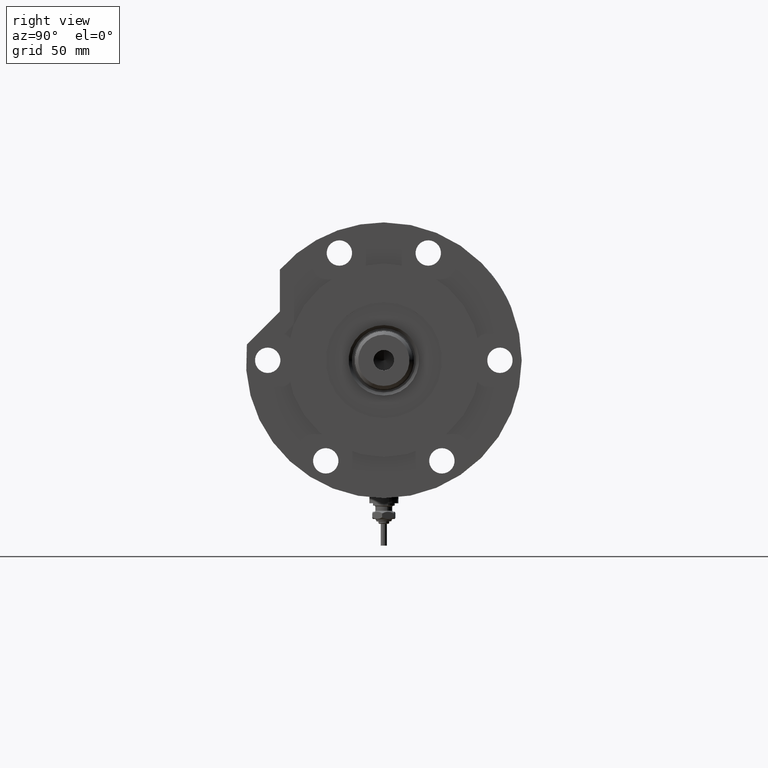
[diagram: clean part render]
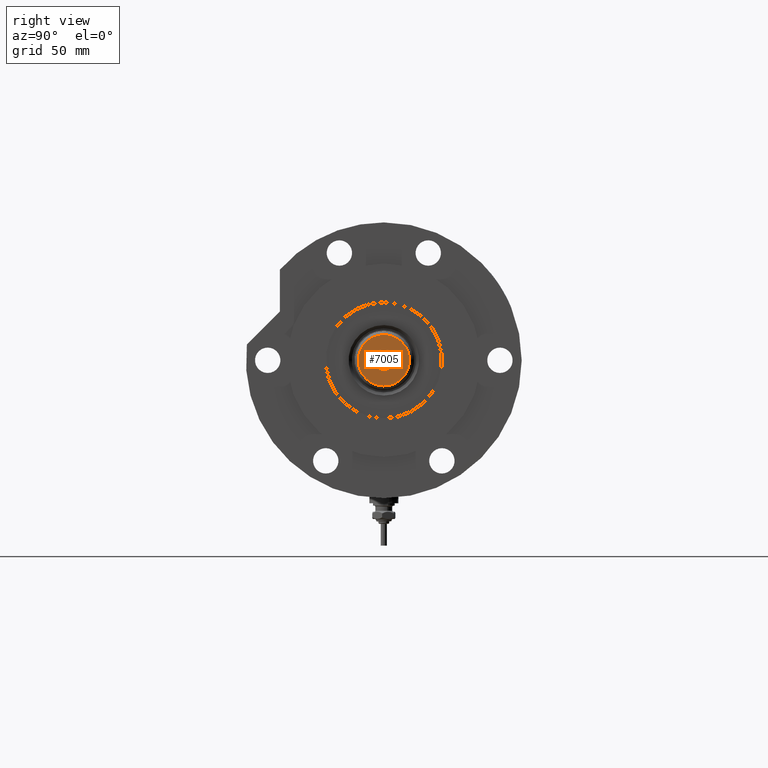
[diagram: same view with one face highlighted and labeled with its STEP entity id]
A machine part, right view. The second image highlights one B-rep face of the part: STEP entity #7005.
In plain terms, the highlighted planar face has unit normal (1, 0, -0).
Its self-contained STEP definition (entity closure, byte-faithful):
#939 = FACE_BOUND ( 'NONE', #3194, .T. ) ;
#1013 = VERTEX_POINT ( 'NONE', #3837 ) ;
#1039 = DIRECTION ( 'NONE',  ( 1.000000000000000000, 0.000000000000000000, 0.000000000000000000 ) ) ;
#1274 = CARTESIAN_POINT ( 'NONE',  ( 0.000000000000000000, 0.000000000000000000, 207.6999999999999886 ) ) ;
#1328 = ORIENTED_EDGE ( 'NONE', *, *, #3082, .F. ) ;
#1415 = ORIENTED_EDGE ( 'NONE', *, *, #6653, .T. ) ;
#1559 = DIRECTION ( 'NONE',  ( 1.000000000000000000, 0.000000000000000000, 0.000000000000000000 ) ) ;
#1655 = DIRECTION ( 'NONE',  ( 1.000000000000000000, 0.000000000000000000, -0.000000000000000000 ) ) ;
#1967 = VERTEX_POINT ( 'NONE', #4471 ) ;
#2129 = CARTESIAN_POINT ( 'NONE',  ( 0.000000000000000000, 0.000000000000000000, 207.6999999999999886 ) ) ;
#2218 = AXIS2_PLACEMENT_3D ( 'NONE', #2771, #7512, #1039 ) ;
#2255 = AXIS2_PLACEMENT_3D ( 'NONE', #1274, #3728, #2496 ) ;
#2496 = DIRECTION ( 'NONE',  ( 1.000000000000000000, 0.000000000000000000, 0.000000000000000000 ) ) ;
#2504 = EDGE_CURVE ( 'NONE', #1013, #1967, #6000, .T. ) ;
#2611 = CARTESIAN_POINT ( 'NONE',  ( 0.000000000000000000, 0.000000000000000000, 207.6999999999999886 ) ) ;
#2746 = AXIS2_PLACEMENT_3D ( 'NONE', #5742, #6345, #1655 ) ;
#2771 = CARTESIAN_POINT ( 'NONE',  ( 0.000000000000000000, 0.000000000000000000, 207.6999999999999886 ) ) ;
#2959 = CIRCLE ( 'NONE', #4670, 4.249999999999997335 ) ;
#3082 = EDGE_CURVE ( 'NONE', #5650, #4655, #2959, .T. ) ;
#3094 = CIRCLE ( 'NONE', #4198, 4.249999999999997335 ) ;
#3194 = EDGE_LOOP ( 'NONE', ( #1328, #5725 ) ) ;
#3378 = ORIENTED_EDGE ( 'NONE', *, *, #2504, .T. ) ;
#3728 = DIRECTION ( 'NONE',  ( 0.000000000000000000, 0.000000000000000000, 1.000000000000000000 ) ) ;
#3733 = CARTESIAN_POINT ( 'NONE',  ( 4.249999999999997335, 0.000000000000000000, 207.6999999999999886 ) ) ;
#3837 = CARTESIAN_POINT ( 'NONE',  ( 10.59999999999999787, 1.383850883036509067E-15, 207.6999999999999886 ) ) ;
#4067 = DIRECTION ( 'NONE',  ( -0.000000000000000000, -0.000000000000000000, 1.000000000000000000 ) ) ;
#4198 = AXIS2_PLACEMENT_3D ( 'NONE', #2611, #4067, #6400 ) ;
#4471 = CARTESIAN_POINT ( 'NONE',  ( -10.59999999999999787, 0.000000000000000000, 207.6999999999999886 ) ) ;
#4477 = DIRECTION ( 'NONE',  ( -0.000000000000000000, -0.000000000000000000, 1.000000000000000000 ) ) ;
#4655 = VERTEX_POINT ( 'NONE', #7456 ) ;
#4670 = AXIS2_PLACEMENT_3D ( 'NONE', #2129, #4477, #1559 ) ;
#5076 = EDGE_CURVE ( 'NONE', #4655, #5650, #3094, .T. ) ;
#5112 = PLANE ( 'NONE',  #2746 ) ;
#5560 = CIRCLE ( 'NONE', #2255, 10.59999999999999787 ) ;
#5650 = VERTEX_POINT ( 'NONE', #3733 ) ;
#5725 = ORIENTED_EDGE ( 'NONE', *, *, #5076, .F. ) ;
#5742 = CARTESIAN_POINT ( 'NONE',  ( 0.000000000000000000, 0.000000000000000000, 207.6999999999999886 ) ) ;
#6000 = CIRCLE ( 'NONE', #2218, 10.59999999999999787 ) ;
#6192 = FACE_OUTER_BOUND ( 'NONE', #7346, .T. ) ;
#6345 = DIRECTION ( 'NONE',  ( 0.000000000000000000, 0.000000000000000000, 1.000000000000000000 ) ) ;
#6400 = DIRECTION ( 'NONE',  ( 1.000000000000000000, 0.000000000000000000, 0.000000000000000000 ) ) ;
#6653 = EDGE_CURVE ( 'NONE', #1967, #1013, #5560, .T. ) ;
#7005 = ADVANCED_FACE ( 'NONE', ( #6192, #939 ), #5112, .T. ) ;
#7346 = EDGE_LOOP ( 'NONE', ( #1415, #3378 ) ) ;
#7456 = CARTESIAN_POINT ( 'NONE',  ( -4.249999999999997335, 5.204748896376248727E-16, 207.6999999999999886 ) ) ;
#7512 = DIRECTION ( 'NONE',  ( 0.000000000000000000, 0.000000000000000000, 1.000000000000000000 ) ) ;